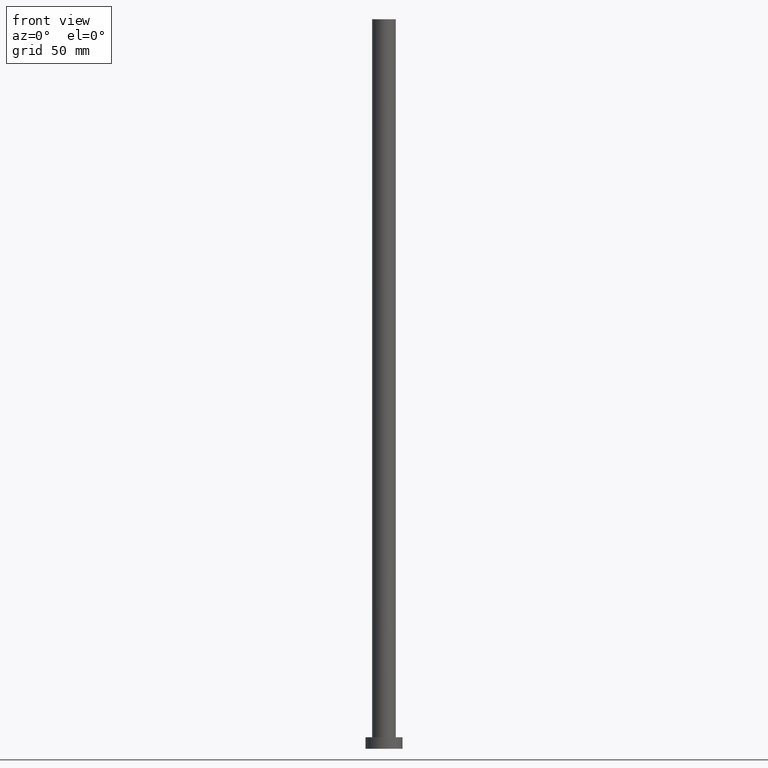
[diagram: clean part render]
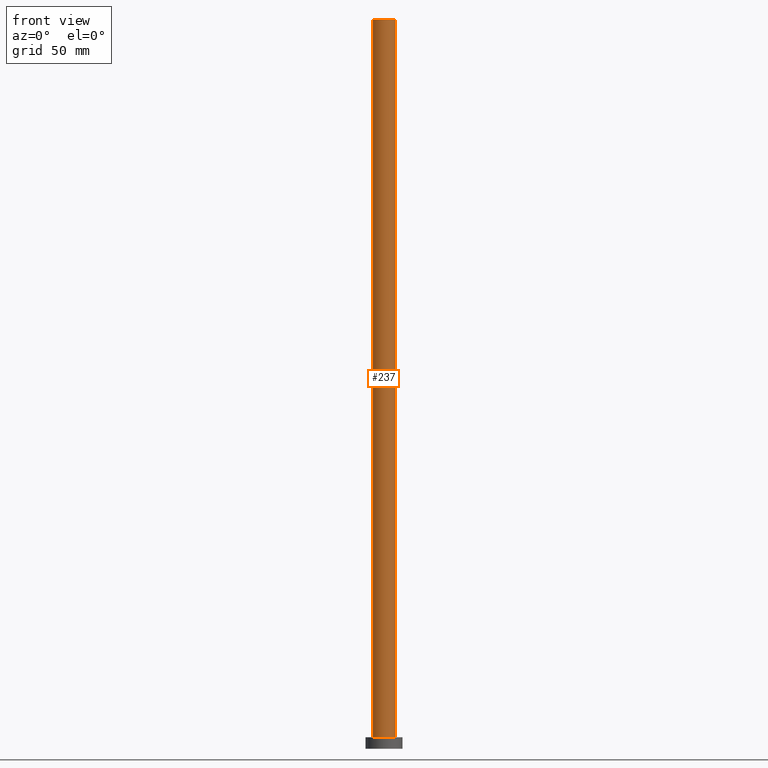
[diagram: same view with one face highlighted and labeled with its STEP entity id]
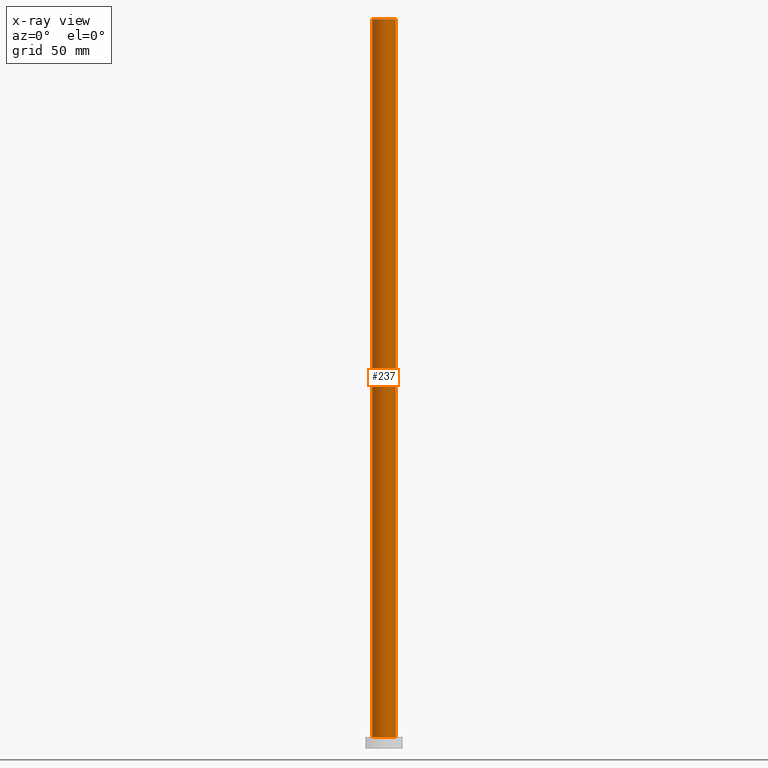
[diagram: x-ray of the same camera — body ghosted, the highlighted face saturated]
A machine part, front view. The second image highlights one B-rep face of the part: STEP entity #237.
The next image is the same camera in x-ray: the body ghosted, the highlighted face saturated — about 0% of this face is hidden behind the body in this view.
In plain terms, the highlighted cylindrical surface (edge-blend (fillet) strip) has radius 5.1 mm, axis along (-0, -0, -1).
Its self-contained STEP definition (entity closure, byte-faithful):
#5 = ORIENTED_EDGE ( 'NONE', *, *, #136, .T. ) ;
#6 = EDGE_LOOP ( 'NONE', ( #186, #242, #219, #5 ) ) ;
#13 = EDGE_CURVE ( 'NONE', #204, #30, #147, .T. ) ;
#16 = CARTESIAN_POINT ( 'NONE',  ( -5.100000000000001421, 0.000000000000000000, 315.0000000000000000 ) ) ;
#20 = CARTESIAN_POINT ( 'NONE',  ( 5.100000000000001421, 6.245698675651502811E-16, 315.0000000000000000 ) ) ;
#22 = FACE_OUTER_BOUND ( 'NONE', #6, .T. ) ;
#26 = DIRECTION ( 'NONE',  ( -0.000000000000000000, -0.000000000000000000, -1.000000000000000000 ) ) ;
#30 = VERTEX_POINT ( 'NONE', #173 ) ;
#40 = DIRECTION ( 'NONE',  ( -1.000000000000000000, 0.000000000000000000, 0.000000000000000000 ) ) ;
#45 = AXIS2_PLACEMENT_3D ( 'NONE', #212, #255, #40 ) ;
#72 = EDGE_CURVE ( 'NONE', #239, #204, #195, .T. ) ;
#75 = CARTESIAN_POINT ( 'NONE',  ( -5.100000000000001421, 0.000000000000000000, 5.000000000000000000 ) ) ;
#102 = DIRECTION ( 'NONE',  ( -0.000000000000000000, -0.000000000000000000, -1.000000000000000000 ) ) ;
#104 = DIRECTION ( 'NONE',  ( 1.000000000000000000, 0.000000000000000000, 0.000000000000000000 ) ) ;
#108 = EDGE_CURVE ( 'NONE', #239, #150, #115, .T. ) ;
#110 = CIRCLE ( 'NONE', #126, 5.100000000000001421 ) ;
#115 = LINE ( 'NONE', #120, #181 ) ;
#119 = CARTESIAN_POINT ( 'NONE',  ( 0.000000000000000000, 0.000000000000000000, 315.0000000000000000 ) ) ;
#120 = CARTESIAN_POINT ( 'NONE',  ( -5.100000000000001421, 0.000000000000000000, 315.0000000000000000 ) ) ;
#126 = AXIS2_PLACEMENT_3D ( 'NONE', #155, #193, #140 ) ;
#136 = EDGE_CURVE ( 'NONE', #150, #30, #110, .T. ) ;
#140 = DIRECTION ( 'NONE',  ( 1.000000000000000000, 0.000000000000000000, 0.000000000000000000 ) ) ;
#146 = CYLINDRICAL_SURFACE ( 'NONE', #45, 5.100000000000001421 ) ;
#147 = LINE ( 'NONE', #203, #238 ) ;
#150 = VERTEX_POINT ( 'NONE', #75 ) ;
#155 = CARTESIAN_POINT ( 'NONE',  ( 0.000000000000000000, 0.000000000000000000, 5.000000000000000000 ) ) ;
#173 = CARTESIAN_POINT ( 'NONE',  ( 5.100000000000001421, 6.245698675651502811E-16, 5.000000000000000000 ) ) ;
#181 = VECTOR ( 'NONE', #102, 1000.000000000000000 ) ;
#186 = ORIENTED_EDGE ( 'NONE', *, *, #13, .F. ) ;
#193 = DIRECTION ( 'NONE',  ( 0.000000000000000000, 0.000000000000000000, 1.000000000000000000 ) ) ;
#195 = CIRCLE ( 'NONE', #244, 5.100000000000001421 ) ;
#197 = DIRECTION ( 'NONE',  ( 0.000000000000000000, 0.000000000000000000, 1.000000000000000000 ) ) ;
#203 = CARTESIAN_POINT ( 'NONE',  ( 5.100000000000001421, 6.245698675651502811E-16, 315.0000000000000000 ) ) ;
#204 = VERTEX_POINT ( 'NONE', #20 ) ;
#212 = CARTESIAN_POINT ( 'NONE',  ( 0.000000000000000000, 0.000000000000000000, 315.0000000000000000 ) ) ;
#219 = ORIENTED_EDGE ( 'NONE', *, *, #108, .T. ) ;
#237 = ADVANCED_FACE ( 'NONE', ( #22 ), #146, .T. ) ;
#238 = VECTOR ( 'NONE', #26, 1000.000000000000000 ) ;
#239 = VERTEX_POINT ( 'NONE', #16 ) ;
#242 = ORIENTED_EDGE ( 'NONE', *, *, #72, .F. ) ;
#244 = AXIS2_PLACEMENT_3D ( 'NONE', #119, #197, #104 ) ;
#255 = DIRECTION ( 'NONE',  ( -0.000000000000000000, -0.000000000000000000, -1.000000000000000000 ) ) ;